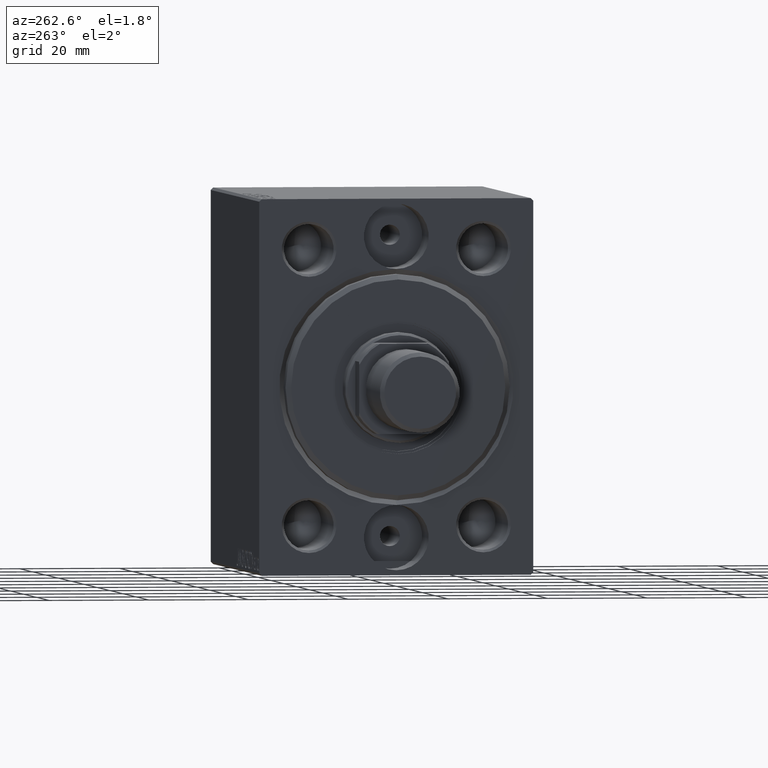
[diagram: clean part render]
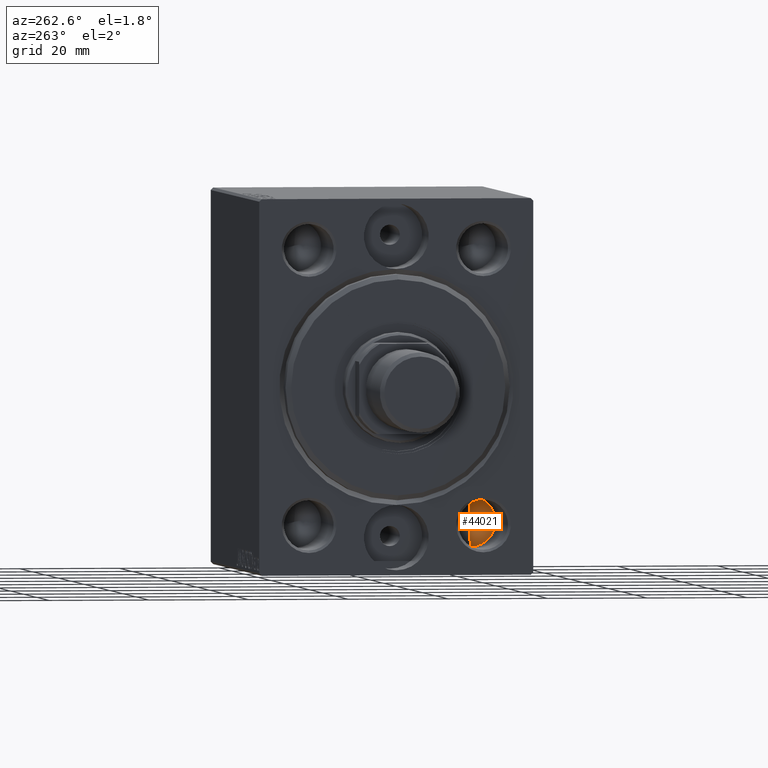
[diagram: same view with one face highlighted and labeled with its STEP entity id]
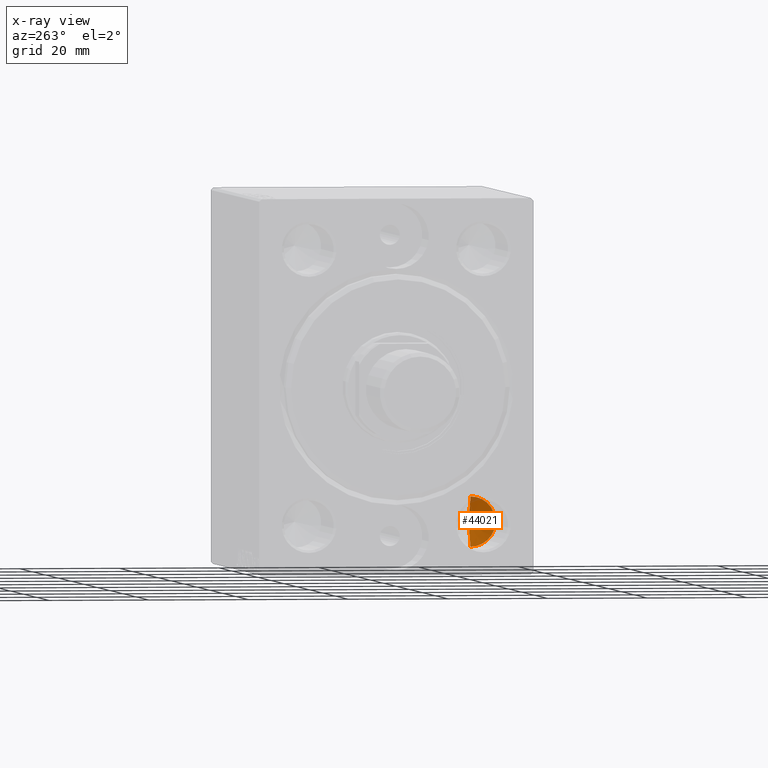
[diagram: x-ray of the same camera — body ghosted, the highlighted face saturated]
A machine part, auxiliary view. The second image highlights one B-rep face of the part: STEP entity #44021.
The next image is the same camera in x-ray: the body ghosted, the highlighted face saturated — about 4% of this face is hidden behind the body in this view.
In plain terms, the highlighted conical surface has half-angle 59 deg.
Its self-contained STEP definition (entity closure, byte-faithful):
#2325 = ORIENTED_EDGE ( 'NONE', *, *, #9207, .F. ) ;
#3843 = AXIS2_PLACEMENT_3D ( 'NONE', #34807, #28281, #6699 ) ;
#4579 = CARTESIAN_POINT ( 'NONE',  ( 20.00000000000000000, -17.50000000000000000, -22.50000000000000000 ) ) ;
#5453 = FACE_OUTER_BOUND ( 'NONE', #40329, .T. ) ;
#6131 = DIRECTION ( 'NONE',  ( -1.000000000000000000, -0.000000000000000000, -0.000000000000000000 ) ) ;
#6699 = DIRECTION ( 'NONE',  ( 0.000000000000000000, 0.000000000000000000, 1.000000000000000000 ) ) ;
#7733 = AXIS2_PLACEMENT_3D ( 'NONE', #8604, #6131, #12422 ) ;
#8604 = CARTESIAN_POINT ( 'NONE',  ( 20.00000000000000000, -17.50000000000000000, -27.49999999999999645 ) ) ;
#9177 = CARTESIAN_POINT ( 'NONE',  ( 20.00000000000000000, -17.50000000000000000, -32.49999999999999289 ) ) ;
#9207 = EDGE_CURVE ( 'NONE', #29194, #30942, #15337, .T. ) ;
#11966 = CARTESIAN_POINT ( 'NONE',  ( 20.00000000000000000, -17.50000000000000000, -22.50000000000000000 ) ) ;
#12422 = DIRECTION ( 'NONE',  ( 0.000000000000000000, 0.000000000000000000, 1.000000000000000000 ) ) ;
#12669 = VECTOR ( 'NONE', #18944, 1000.000000000000000 ) ;
#13987 = ORIENTED_EDGE ( 'NONE', *, *, #27832, .T. ) ;
#15337 = LINE ( 'NONE', #11966, #12669 ) ;
#15597 = VERTEX_POINT ( 'NONE', #21280 ) ;
#17362 = ORIENTED_EDGE ( 'NONE', *, *, #30874, .T. ) ;
#18944 = DIRECTION ( 'NONE',  ( -0.5150380749100552658, 0.000000000000000000, 0.8571673007021116675 ) ) ;
#19742 = VECTOR ( 'NONE', #20816, 1000.000000000000000 ) ;
#20656 = CONICAL_SURFACE ( 'NONE', #7733, 4.999999999999997335, 1.029744258676653201 ) ;
#20816 = DIRECTION ( 'NONE',  ( -0.5150380749100552658, 1.049727191138617833E-16, -0.8571673007021116675 ) ) ;
#21280 = CARTESIAN_POINT ( 'NONE',  ( 20.00000000000000000, -17.50000000000000000, -32.49999999999999289 ) ) ;
#23359 = LINE ( 'NONE', #9177, #19742 ) ;
#26848 = CIRCLE ( 'NONE', #3843, 4.999999999999997335 ) ;
#27832 = EDGE_CURVE ( 'NONE', #15597, #30942, #26848, .T. ) ;
#28281 = DIRECTION ( 'NONE',  ( -1.000000000000000000, -0.000000000000000000, -0.000000000000000000 ) ) ;
#29194 = VERTEX_POINT ( 'NONE', #37013 ) ;
#30874 = EDGE_CURVE ( 'NONE', #29194, #15597, #23359, .T. ) ;
#30942 = VERTEX_POINT ( 'NONE', #4579 ) ;
#34807 = CARTESIAN_POINT ( 'NONE',  ( 20.00000000000000000, -17.50000000000000000, -27.49999999999999645 ) ) ;
#37013 = CARTESIAN_POINT ( 'NONE',  ( 23.00430309513780358, -17.50000000000000711, -27.49999999999999645 ) ) ;
#40329 = EDGE_LOOP ( 'NONE', ( #2325, #17362, #13987 ) ) ;
#44021 = ADVANCED_FACE ( 'NONE', ( #5453 ), #20656, .F. ) ;